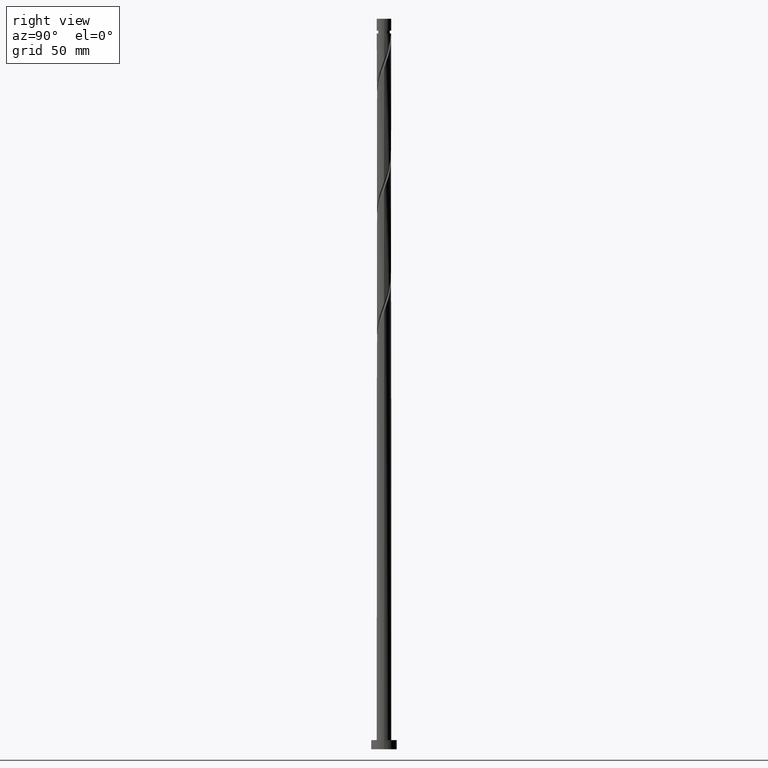
[diagram: clean part render]
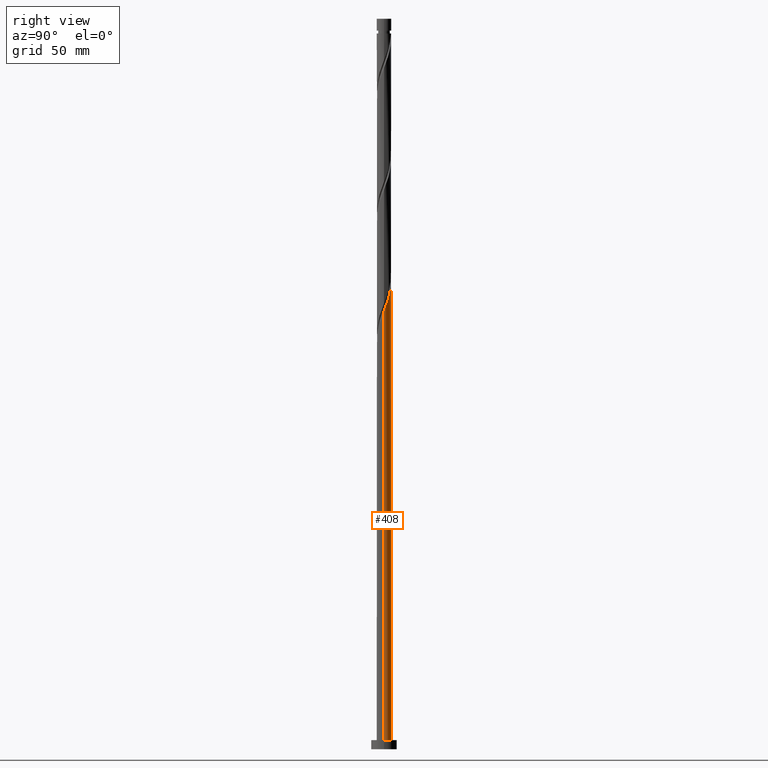
[diagram: same view with one face highlighted and labeled with its STEP entity id]
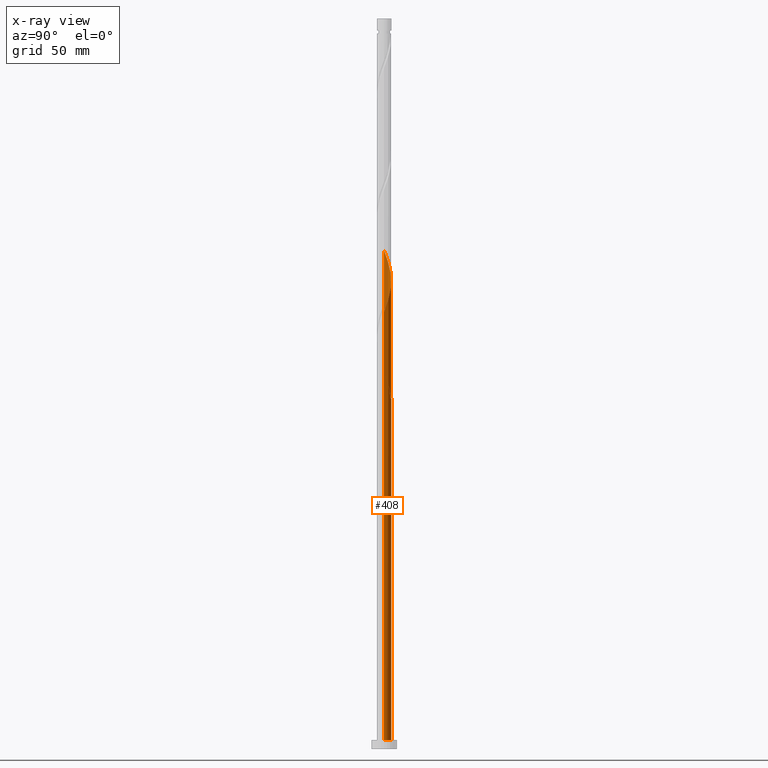
[diagram: x-ray of the same camera — body ghosted, the highlighted face saturated]
A machine part, right view. The second image highlights one B-rep face of the part: STEP entity #408.
The next image is the same camera in x-ray: the body ghosted, the highlighted face saturated — about 0% of this face is hidden behind the body in this view.
In plain terms, the highlighted cylindrical surface (edge-blend (fillet) strip) has radius 4 mm, axis along (-0, -0, -1).
Its self-contained STEP definition (entity closure, byte-faithful):
#2 = CARTESIAN_POINT ( 'NONE',  ( -3.792814557677654186, 1.270652482415436380, 202.9982349499637166 ) ) ;
#16 = CARTESIAN_POINT ( 'NONE',  ( -0.7959899496852989031, 3.920000000000005258, 191.8871238388526024 ) ) ;
#32 = DIRECTION ( 'NONE',  ( -0.000000000000000000, -0.000000000000000000, -1.000000000000000000 ) ) ;
#37 = CARTESIAN_POINT ( 'NONE',  ( -1.593609487498516275, 3.668842978563510826, 194.1093460610749446 ) ) ;
#38 = VERTEX_POINT ( 'NONE', #409 ) ;
#85 = ORIENTED_EDGE ( 'NONE', *, *, #1911, .F. ) ;
#101 = CARTESIAN_POINT ( 'NONE',  ( -2.321580643721306458, 3.257339913901926565, 262.9982349499637166 ) ) ;
#111 = CARTESIAN_POINT ( 'NONE',  ( 2.042645993162207851, 3.464729102101770319, 250.7760127277415165 ) ) ;
#127 = CARTESIAN_POINT ( 'NONE',  ( -3.999999999999998224, 0.1913759971470080923, 210.1706852234767098 ) ) ;
#158 = LINE ( 'NONE', #191, #399 ) ;
#191 = CARTESIAN_POINT ( 'NONE',  ( -4.000000000000000000, 0.000000000000000000, 400.0000000000000000 ) ) ;
#201 = CARTESIAN_POINT ( 'NONE',  ( 4.000000000000000000, 4.898587196589411843E-16, 5.000000000000000000 ) ) ;
#224 = CARTESIAN_POINT ( 'NONE',  ( 3.689051991364083349, 1.602387534070727870, 244.1093460610748309 ) ) ;
#233 = CARTESIAN_POINT ( 'NONE',  ( -1.979220423070280344, 3.501347872067851252, 261.8871238388525740 ) ) ;
#243 = CARTESIAN_POINT ( 'NONE',  ( 1.660148792339431800, 3.639217771347844632, 251.8871238388526024 ) ) ;
#257 = AXIS2_PLACEMENT_3D ( 'NONE', #1230, #1861, #1049 ) ;
#259 = DIRECTION ( 'NONE',  ( -0.000000000000000000, -0.000000000000000000, -1.000000000000000000 ) ) ;
#262 = CARTESIAN_POINT ( 'NONE',  ( -4.000000000000005329, 0.2278949497857337969, 272.4894226192798783 ) ) ;
#270 = AXIS2_PLACEMENT_3D ( 'NONE', #666, #307, #1555 ) ;
#279 = EDGE_CURVE ( 'NONE', #1741, #1770, #1499, .T. ) ;
#298 = CARTESIAN_POINT ( 'NONE',  ( -3.999999999999999112, 6.353076553782659938E-15, 210.6792337490407192 ) ) ;
#307 = DIRECTION ( 'NONE',  ( 0.000000000000000000, -0.000000000000000000, -1.000000000000000000 ) ) ;
#323 = CARTESIAN_POINT ( 'NONE',  ( -0.4568176844692841687, 3.996006507438225164, 195.2204571721859736 ) ) ;
#339 = CARTESIAN_POINT ( 'NONE',  ( -4.000000000000007105, 0.2278949497857261919, 205.8227559526132211 ) ) ;
#351 = EDGE_LOOP ( 'NONE', ( #1506, #1902, #974, #85, #486, #1780, #525, #1341 ) ) ;
#358 = CARTESIAN_POINT ( 'NONE',  ( -3.926365515130362027, 0.8720116088262015452, 204.1093460610748309 ) ) ;
#370 = EDGE_CURVE ( 'NONE', #1770, #1309, #1788, .T. ) ;
#382 = CARTESIAN_POINT ( 'NONE',  ( 0.03641816851272087346, 3.999834211189538191, 256.3315682832970879 ) ) ;
#392 = CARTESIAN_POINT ( 'NONE',  ( -2.948087585633564434, 2.703475464551750029, 265.2204571721858883 ) ) ;
#399 = VECTOR ( 'NONE', #32, 1000.000000000000000 ) ;
#407 = CARTESIAN_POINT ( 'NONE',  ( -3.815322223626528952, 1.201381009464322691, 207.4426793944081737 ) ) ;
#408 = ADVANCED_FACE ( 'NONE', ( #754 ), #1696, .T. ) ;
#409 = CARTESIAN_POINT ( 'NONE',  ( -0.7959899496852990142, 3.920000000000005258, 191.8871238388526024 ) ) ;
#415 = CARTESIAN_POINT ( 'NONE',  ( -3.232234306894795406, 2.393618973367499958, 266.3315682832970310 ) ) ;
#468 = CARTESIAN_POINT ( 'NONE',  ( 0.3839813474438478202, 4.003661914940837896, 192.9982349499637166 ) ) ;
#486 = ORIENTED_EDGE ( 'NONE', *, *, #637, .F. ) ;
#491 = CARTESIAN_POINT ( 'NONE',  ( -2.321580643721306458, 3.257339913901926565, 196.3315682832970310 ) ) ;
#498 = CARTESIAN_POINT ( 'NONE',  ( -0.03641816851271800770, 3.999834211189531086, 194.1093460610748025 ) ) ;
#525 = ORIENTED_EDGE ( 'NONE', *, *, #1670, .F. ) ;
#551 = CARTESIAN_POINT ( 'NONE',  ( -4.000000000000000000, 0.000000000000000000, 5.000000000000000000 ) ) ;
#555 = CARTESIAN_POINT ( 'NONE',  ( -3.926365515130362027, 0.8720116088262015452, 270.7760127277414313 ) ) ;
#562 = CARTESIAN_POINT ( 'NONE',  ( 4.000000000000000000, 4.898587196589411843E-16, 400.0000000000000000 ) ) ;
#564 = CARTESIAN_POINT ( 'NONE',  ( 0.8672346379929739557, 3.904856474016073165, 254.1093460610748309 ) ) ;
#616 = DIRECTION ( 'NONE',  ( 1.000000000000000000, 0.000000000000000000, 0.000000000000000000 ) ) ;
#637 = EDGE_CURVE ( 'NONE', #38, #907, #1288, .T. ) ;
#642 = CARTESIAN_POINT ( 'NONE',  ( -4.000000000000006217, -4.544318287882156926E-15, 273.0950139286644571 ) ) ;
#657 = CARTESIAN_POINT ( 'NONE',  ( -1.979220423070280344, 3.501347872067851252, 195.2204571721859168 ) ) ;
#666 = CARTESIAN_POINT ( 'NONE',  ( 0.000000000000000000, 0.000000000000000000, 191.8871238388526308 ) ) ;
#692 = CARTESIAN_POINT ( 'NONE',  ( 4.000000000000007105, 3.198960900022307463E-15, 239.7616805953311427 ) ) ;
#749 = CARTESIAN_POINT ( 'NONE',  ( -3.981729436060731597, 0.3818778574459196218, 209.6649016166304023 ) ) ;
#754 = FACE_OUTER_BOUND ( 'NONE', #351, .T. ) ;
#763 = CIRCLE ( 'NONE', #270, 4.000000000000000000 ) ;
#770 = VERTEX_POINT ( 'NONE', #1454 ) ;
#796 = CARTESIAN_POINT ( 'NONE',  ( -2.996824607992349065, 2.649347517584565548, 202.9982349499637166 ) ) ;
#812 = CARTESIAN_POINT ( 'NONE',  ( -1.207998551926751984, 3.836338085059167291, 192.9982349499636598 ) ) ;
#860 = CARTESIAN_POINT ( 'NONE',  ( -4.000000000000006217, -4.544318287882156926E-15, 206.4283472619977999 ) ) ;
#876 = CARTESIAN_POINT ( 'NONE',  ( -3.482167122072584498, 1.968378046503448831, 205.2204571721859168 ) ) ;
#907 = VERTEX_POINT ( 'NONE', #860 ) ;
#937 = CARTESIAN_POINT ( 'NONE',  ( -2.718366963203605380, 2.964326476232963081, 201.8871238388525740 ) ) ;
#953 = CARTESIAN_POINT ( 'NONE',  ( -2.663940864372333905, 3.013331955736001877, 197.4426793944081737 ) ) ;
#974 = ORIENTED_EDGE ( 'NONE', *, *, #1758, .T. ) ;
#981 = EDGE_CURVE ( 'NONE', #1741, #1677, #1652, .T. ) ;
#1006 = CARTESIAN_POINT ( 'NONE',  ( -1.207998551926751984, 3.836338085059167291, 259.6649016166303454 ) ) ;
#1013 = CARTESIAN_POINT ( 'NONE',  ( -4.000000000000000000, 0.000000000000000000, 400.0000000000000000 ) ) ;
#1026 = CARTESIAN_POINT ( 'NONE',  ( 2.380506478182908836, 3.214527789167368699, 249.6649016166304023 ) ) ;
#1034 = CARTESIAN_POINT ( 'NONE',  ( 0.4568176844692864447, 3.996006507438230937, 255.2204571721860020 ) ) ;
#1049 = DIRECTION ( 'NONE',  ( -1.000000000000000000, 0.000000000000000000, 0.000000000000000000 ) ) ;
#1053 = CIRCLE ( 'NONE', #1116, 4.000000000000000000 ) ;
#1070 = VERTEX_POINT ( 'NONE', #551 ) ;
#1095 = CARTESIAN_POINT ( 'NONE',  ( -2.380506478182902175, 3.214527789167365146, 200.7760127277414597 ) ) ;
#1102 = CARTESIAN_POINT ( 'NONE',  ( -2.042645993162201190, 3.464729102101768099, 199.6649016166303738 ) ) ;
#1106 = CARTESIAN_POINT ( 'NONE',  ( -2.948087585633564434, 2.703475464551750029, 198.5537905055192880 ) ) ;
#1110 = CARTESIAN_POINT ( 'NONE',  ( 4.000000000000007105, 3.198960900022307463E-15, 239.7616805953311427 ) ) ;
#1116 = AXIS2_PLACEMENT_3D ( 'NONE', #1121, #1865, #616 ) ;
#1121 = CARTESIAN_POINT ( 'NONE',  ( 0.000000000000000000, 0.000000000000000000, 5.000000000000000000 ) ) ;
#1152 = CARTESIAN_POINT ( 'NONE',  ( 3.941592455888989655, 0.8003744848579154025, 241.8871238388525740 ) ) ;
#1164 = CARTESIAN_POINT ( 'NONE',  ( -0.7959899496852991252, 3.920000000000006146, 258.5537905055193164 ) ) ;
#1173 = CARTESIAN_POINT ( 'NONE',  ( 2.996824607992356171, 2.649347517584567324, 247.4426793944081737 ) ) ;
#1185 = CARTESIAN_POINT ( 'NONE',  ( -3.941592455888983881, 0.8003744848579157356, 208.5537905055192596 ) ) ;
#1191 = CARTESIAN_POINT ( 'NONE',  ( -3.445748953559870209, 2.031456164686085142, 267.4426793944081737 ) ) ;
#1230 = CARTESIAN_POINT ( 'NONE',  ( 0.000000000000000000, 0.000000000000000000, 400.0000000000000000 ) ) ;
#1243 = EDGE_CURVE ( 'NONE', #38, #770, #763, .T. ) ;
#1252 = CARTESIAN_POINT ( 'NONE',  ( -1.277651591516653529, 3.813706440593912728, 197.4426793944081169 ) ) ;
#1261 = VECTOR ( 'NONE', #1638, 1000.000000000000000 ) ;
#1288 =( BOUNDED_CURVE ( )  B_SPLINE_CURVE ( 2, ( #16, #812, #37, #657, #491, #953, #1106, #1908, #1727, #1433, #2, #358, #1416, #339, #1887 ),
 .UNSPECIFIED., .F., .T. ) 
 B_SPLINE_CURVE_WITH_KNOTS ( ( 3, 2, 2, 2, 2, 2, 2, 3 ),
 ( 0.000000000000000000, 0.008333333333333303727, 0.01666666666666671848, 0.02500000000000002220, 0.03333333333333332593, 0.04166666666666662966, 0.05000000000000004441, 0.05452860127731155859 ),
 .UNSPECIFIED. ) 
 CURVE ( )  GEOMETRIC_REPRESENTATION_ITEM ( )  RATIONAL_B_SPLINE_CURVE ( ( 0.9090909090909520263, 0.9041108139712001890, 0.9090909090909520263, 0.9041108139712001890, 0.9090909090909520263, 0.9041108139712001890, 0.9090909090909520263, 0.9041108139712001890, 0.9090909090909520263, 0.9041108139712001890, 0.9090909090909520263, 0.9041108139712001890, 0.9090909090909520263, 0.9063845652764990213, 0.9066196499552403587 ) ) 
 REPRESENTATION_ITEM ( '' )  );
#1309 = VERTEX_POINT ( 'NONE', #1713 ) ;
#1311 = CARTESIAN_POINT ( 'NONE',  ( 1.277651591516657970, 3.813706440593916280, 252.9982349499637166 ) ) ;
#1323 = CARTESIAN_POINT ( 'NONE',  ( 3.482167122072591159, 1.968378046503451051, 245.2204571721859452 ) ) ;
#1340 = CARTESIAN_POINT ( 'NONE',  ( -3.659263600224945900, 1.669293356004670992, 268.5537905055192596 ) ) ;
#1341 = ORIENTED_EDGE ( 'NONE', *, *, #370, .F. ) ;
#1410 = CARTESIAN_POINT ( 'NONE',  ( -0.8672346379929684046, 3.904856474016067835, 196.3315682832970026 ) ) ;
#1416 = CARTESIAN_POINT ( 'NONE',  ( -3.974115965681424001, 0.4543151893961396848, 205.2204571721858599 ) ) ;
#1433 = CARTESIAN_POINT ( 'NONE',  ( -3.659263600224945900, 1.669293356004670992, 201.8871238388526024 ) ) ;
#1454 = CARTESIAN_POINT ( 'NONE',  ( 0.7959899496853005685, 3.919999999999999041, 191.8871238388526024 ) ) ;
#1475 = CARTESIAN_POINT ( 'NONE',  ( -4.000000000000006217, -4.544318287882156137E-15, 273.0950139286644571 ) ) ;
#1496 = CARTESIAN_POINT ( 'NONE',  ( 3.815322223626536058, 1.201381009464321359, 242.9982349499637166 ) ) ;
#1499 =( BOUNDED_CURVE ( )  B_SPLINE_CURVE ( 2, ( #692, #1948, #1798, #1152, #1496, #224, #1323, #1939, #1173, #1621, #1026, #111, #243, #1311, #564, #1034, #382, #1769, #1164, #1006, #1779, #233, #101, #1808, #392, #415, #1191, #1340, #1958, #555, #1656, #262, #1475 ),
 .UNSPECIFIED., .F., .T. ) 
 B_SPLINE_CURVE_WITH_KNOTS ( ( 3, 2, 2, 2, 2, 2, 2, 2, 2, 2, 2, 2, 2, 2, 2, 2, 3 ),
 ( 0.1795286012773115170, 0.1833333333333333481, 0.1916666666666666519, 0.1999999999999999556, 0.2083333333333333703, 0.2166666666666666741, 0.2249999999999999778, 0.2333333333333332815, 0.2416666666666666963, 0.2500000000000000000, 0.2583333333333333037, 0.2666666666666667185, 0.2750000000000000222, 0.2833333333333333259, 0.2916666666666666297, 0.3000000000000000444, 0.3045286012773114059 ),
 .UNSPECIFIED. ) 
 CURVE ( )  GEOMETRIC_REPRESENTATION_ITEM ( )  RATIONAL_B_SPLINE_CURVE ( ( 0.9066196499552403587, 0.9068171577856530829, 0.9090909090909520263, 0.9041108139712001890, 0.9090909090909520263, 0.9041108139712001890, 0.9090909090909520263, 0.9041108139712001890, 0.9090909090909520263, 0.9041108139712001890, 0.9090909090909520263, 0.9041108139712001890, 0.9090909090909520263, 0.9041108139712001890, 0.9090909090909520263, 0.9041108139712001890, 0.9090909090909520263, 0.9041108139712001890, 0.9090909090909520263, 0.9041108139712001890, 0.9090909090909520263, 0.9041108139712001890, 0.9090909090909520263, 0.9041108139712001890, 0.9090909090909520263, 0.9041108139712001890, 0.9090909090909520263, 0.9041108139712001890, 0.9090909090909520263, 0.9041108139712001890, 0.9090909090909520263, 0.9063845652764992433, 0.9066196499552403587 ) ) 
 REPRESENTATION_ITEM ( '' )  );
#1501 = CARTESIAN_POINT ( 'NONE',  ( -3.275282252781092307, 2.334368558936170235, 204.1093460610748309 ) ) ;
#1506 = ORIENTED_EDGE ( 'NONE', *, *, #279, .F. ) ;
#1555 = DIRECTION ( 'NONE',  ( -1.000000000000000000, 0.000000000000000000, 0.000000000000000000 ) ) ;
#1581 = CARTESIAN_POINT ( 'NONE',  ( -1.660148792339427359, 3.639217771347839747, 198.5537905055192596 ) ) ;
#1621 = CARTESIAN_POINT ( 'NONE',  ( 2.718366963203609377, 2.964326476232966190, 248.5537905055192311 ) ) ;
#1638 = DIRECTION ( 'NONE',  ( -0.000000000000000000, -0.000000000000000000, -1.000000000000000000 ) ) ;
#1650 = CARTESIAN_POINT ( 'NONE',  ( -3.689051991364076244, 1.602387534070728980, 206.3315682832970026 ) ) ;
#1652 = LINE ( 'NONE', #562, #1829 ) ;
#1656 = CARTESIAN_POINT ( 'NONE',  ( -3.974115965681424001, 0.4543151893961396848, 271.8871238388526308 ) ) ;
#1670 = EDGE_CURVE ( 'NONE', #1309, #770, #1912, .T. ) ;
#1677 = VERTEX_POINT ( 'NONE', #201 ) ;
#1696 = CYLINDRICAL_SURFACE ( 'NONE', #257, 4.000000000000000000 ) ;
#1713 = CARTESIAN_POINT ( 'NONE',  ( -3.999999999999999112, 6.353076553782659938E-15, 210.6792337490407192 ) ) ;
#1727 = CARTESIAN_POINT ( 'NONE',  ( -3.445748953559870209, 2.031456164686085142, 200.7760127277415165 ) ) ;
#1741 = VERTEX_POINT ( 'NONE', #1110 ) ;
#1758 = EDGE_CURVE ( 'NONE', #1677, #1070, #1053, .T. ) ;
#1769 = CARTESIAN_POINT ( 'NONE',  ( -0.3839813474438444896, 4.003661914940843225, 257.4426793944081169 ) ) ;
#1770 = VERTEX_POINT ( 'NONE', #642 ) ;
#1779 = CARTESIAN_POINT ( 'NONE',  ( -1.593609487498516275, 3.668842978563510826, 260.7760127277415449 ) ) ;
#1780 = ORIENTED_EDGE ( 'NONE', *, *, #1243, .T. ) ;
#1788 = LINE ( 'NONE', #1013, #1261 ) ;
#1798 = CARTESIAN_POINT ( 'NONE',  ( 3.981729436060738703, 0.3818778574459159580, 240.7760127277414881 ) ) ;
#1808 = CARTESIAN_POINT ( 'NONE',  ( -2.663940864372333905, 3.013331955736001877, 264.1093460610749162 ) ) ;
#1829 = VECTOR ( 'NONE', #259, 1000.000000000000000 ) ;
#1855 = CARTESIAN_POINT ( 'NONE',  ( 0.7959899496853005685, 3.919999999999999041, 191.8871238388525740 ) ) ;
#1861 = DIRECTION ( 'NONE',  ( -0.000000000000000000, -0.000000000000000000, -1.000000000000000000 ) ) ;
#1865 = DIRECTION ( 'NONE',  ( 0.000000000000000000, 0.000000000000000000, 1.000000000000000000 ) ) ;
#1887 = CARTESIAN_POINT ( 'NONE',  ( -4.000000000000006217, -4.544318287882156137E-15, 206.4283472619977999 ) ) ;
#1902 = ORIENTED_EDGE ( 'NONE', *, *, #981, .T. ) ;
#1908 = CARTESIAN_POINT ( 'NONE',  ( -3.232234306894795406, 2.393618973367499958, 199.6649016166304023 ) ) ;
#1911 = EDGE_CURVE ( 'NONE', #907, #1070, #158, .T. ) ;
#1912 =( BOUNDED_CURVE ( )  B_SPLINE_CURVE ( 2, ( #298, #127, #749, #1185, #407, #1650, #876, #1501, #796, #937, #1095, #1102, #1581, #1252, #1410, #323, #498, #468, #1855 ),
 .UNSPECIFIED., .F., .T. ) 
 B_SPLINE_CURVE_WITH_KNOTS ( ( 3, 2, 2, 2, 2, 2, 2, 2, 2, 3 ),
 ( 0.9295286012773116280, 0.9333333333333333481, 0.9416666666666666519, 0.9499999999999999556, 0.9583333333333333703, 0.9666666666666666741, 0.9749999999999999778, 0.9833333333333332815, 0.9916666666666666963, 1.000000000000000000 ),
 .UNSPECIFIED. ) 
 CURVE ( )  GEOMETRIC_REPRESENTATION_ITEM ( )  RATIONAL_B_SPLINE_CURVE ( ( 0.9066196499552343635, 0.9068171577856471988, 0.9090909090909460311, 0.9041108139711943048, 0.9090909090909460311, 0.9041108139711943048, 0.9090909090909460311, 0.9041108139711943048, 0.9090909090909460311, 0.9041108139711943048, 0.9090909090909460311, 0.9041108139711943048, 0.9090909090909460311, 0.9041108139711943048, 0.9090909090909460311, 0.9041108139711943048, 0.9090909090909460311, 0.9041108139711943048, 0.9090909090909460311 ) ) 
 REPRESENTATION_ITEM ( '' )  );
#1939 = CARTESIAN_POINT ( 'NONE',  ( 3.275282252781098968, 2.334368558936170679, 246.3315682832970595 ) ) ;
#1948 = CARTESIAN_POINT ( 'NONE',  ( 4.000000000000006217, 0.1913759971469990162, 240.2702291208951522 ) ) ;
#1958 = CARTESIAN_POINT ( 'NONE',  ( -3.792814557677654186, 1.270652482415436380, 269.6649016166303454 ) ) ;